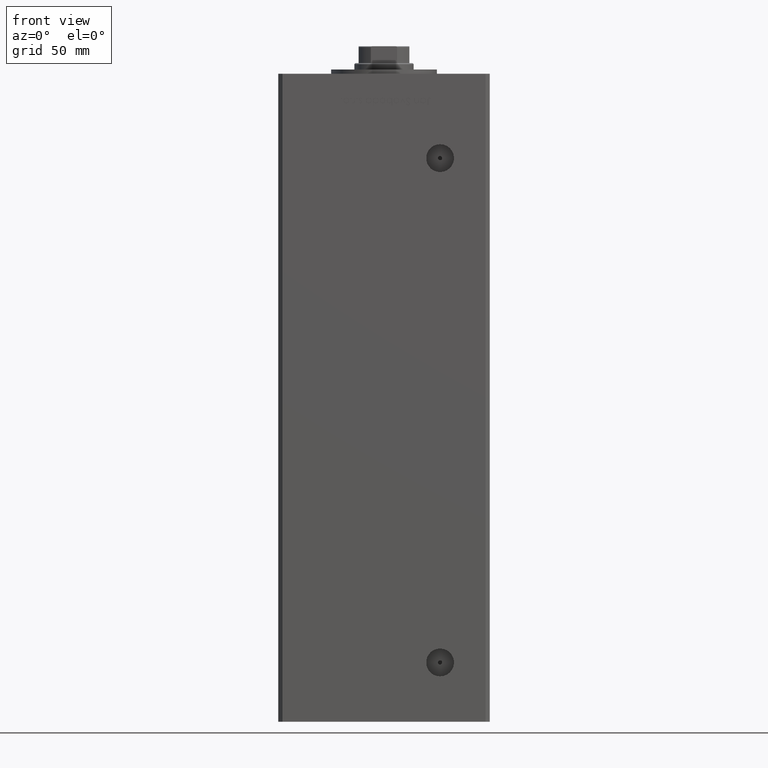
[diagram: clean part render]
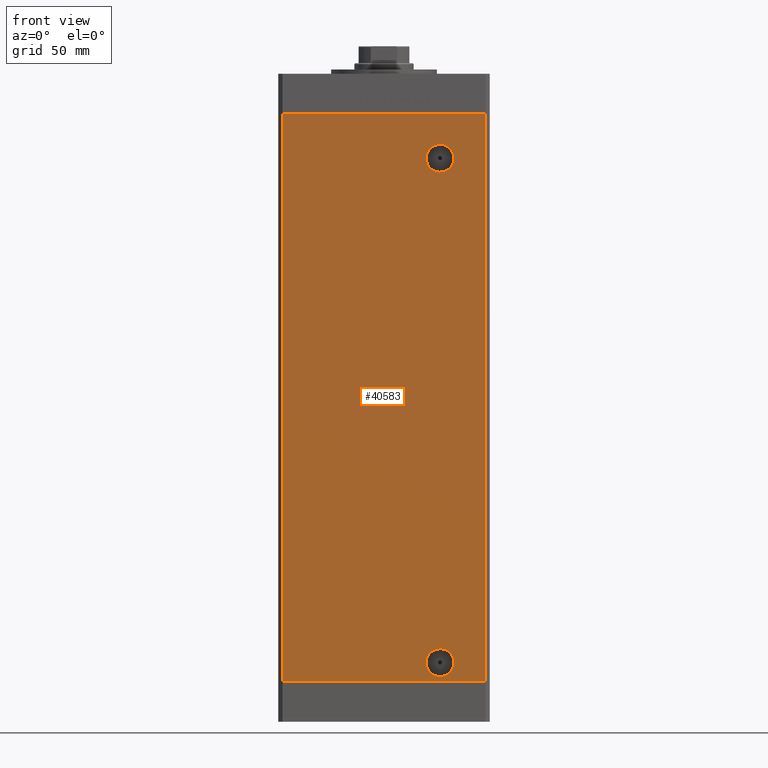
[diagram: same view with one face highlighted and labeled with its STEP entity id]
A machine part, front view. The second image highlights one B-rep face of the part: STEP entity #40583.
In plain terms, the highlighted planar face has unit normal (0, 1, 0).
Its self-contained STEP definition (entity closure, byte-faithful):
#291 = DIRECTION ( 'NONE',  ( 0.000000000000000000, -0.000000000000000000, 1.000000000000000000 ) ) ;
#1566 = EDGE_CURVE ( 'NONE', #24030, #47044, #41972, .T. ) ;
#3149 = DIRECTION ( 'NONE',  ( -0.000000000000000000, -0.000000000000000000, -1.000000000000000000 ) ) ;
#3734 = CARTESIAN_POINT ( 'NONE',  ( -47.99999999999998579, -43.50000000000000000, 268.5000000000000000 ) ) ;
#4540 = DIRECTION ( 'NONE',  ( 0.000000000000000000, 0.000000000000000000, -1.000000000000000000 ) ) ;
#4769 = FACE_BOUND ( 'NONE', #34855, .T. ) ;
#5316 = CARTESIAN_POINT ( 'NONE',  ( 47.99999999999998579, -43.50000000000000000, 0.000000000000000000 ) ) ;
#5410 = CARTESIAN_POINT ( 'NONE',  ( 26.49999999999998934, -43.50000000000000000, 9.000000000000007105 ) ) ;
#5587 = ORIENTED_EDGE ( 'NONE', *, *, #46482, .T. ) ;
#6543 = CARTESIAN_POINT ( 'NONE',  ( 47.99999999999998579, -43.50000000000000000, 268.5000000000000000 ) ) ;
#8670 = AXIS2_PLACEMENT_3D ( 'NONE', #5410, #37602, #49974 ) ;
#9146 = CARTESIAN_POINT ( 'NONE',  ( 26.49999999999998934, -43.50000000000000000, 9.000000000000007105 ) ) ;
#9281 = LINE ( 'NONE', #17449, #21624 ) ;
#9954 = AXIS2_PLACEMENT_3D ( 'NONE', #23300, #35950, #40179 ) ;
#10145 = EDGE_CURVE ( 'NONE', #43486, #29342, #11854, .T. ) ;
#11018 = CIRCLE ( 'NONE', #40503, 6.580000000000002736 ) ;
#11854 = LINE ( 'NONE', #27944, #50925 ) ;
#11898 = VECTOR ( 'NONE', #3149, 1000.000000000000000 ) ;
#12377 = CARTESIAN_POINT ( 'NONE',  ( 26.49999999999998934, -43.50000000000000000, 2.420000000000013252 ) ) ;
#12472 = DIRECTION ( 'NONE',  ( -0.000000000000000000, 1.000000000000000000, -0.000000000000000000 ) ) ;
#12693 = EDGE_LOOP ( 'NONE', ( #15281, #17854 ) ) ;
#13104 = CARTESIAN_POINT ( 'NONE',  ( 26.49999999999996092, -43.50000000000000000, 254.0799999999999841 ) ) ;
#13506 = DIRECTION ( 'NONE',  ( -0.000000000000000000, -0.000000000000000000, -1.000000000000000000 ) ) ;
#14253 = VERTEX_POINT ( 'NONE', #12377 ) ;
#15281 = ORIENTED_EDGE ( 'NONE', *, *, #52131, .F. ) ;
#17424 = ORIENTED_EDGE ( 'NONE', *, *, #10145, .T. ) ;
#17449 = CARTESIAN_POINT ( 'NONE',  ( -47.99999999999998579, -43.50000000000000000, 268.5000000000000000 ) ) ;
#17694 = CARTESIAN_POINT ( 'NONE',  ( -47.99999999999998579, -43.50000000000000000, 268.5000000000000000 ) ) ;
#17854 = ORIENTED_EDGE ( 'NONE', *, *, #26474, .F. ) ;
#18951 = ORIENTED_EDGE ( 'NONE', *, *, #1566, .F. ) ;
#19213 = VERTEX_POINT ( 'NONE', #34875 ) ;
#20246 = ORIENTED_EDGE ( 'NONE', *, *, #26963, .T. ) ;
#21272 = DIRECTION ( 'NONE',  ( 0.000000000000000000, -1.000000000000000000, 0.000000000000000000 ) ) ;
#21624 = VECTOR ( 'NONE', #13506, 1000.000000000000000 ) ;
#22441 = DIRECTION ( 'NONE',  ( 1.000000000000000000, 0.000000000000000000, 0.000000000000000000 ) ) ;
#22538 = EDGE_CURVE ( 'NONE', #24030, #43486, #9281, .T. ) ;
#22877 = VECTOR ( 'NONE', #22441, 1000.000000000000000 ) ;
#23300 = CARTESIAN_POINT ( 'NONE',  ( 26.49999999999996092, -43.50000000000000000, 247.5000000000000000 ) ) ;
#23635 = AXIS2_PLACEMENT_3D ( 'NONE', #3734, #44094, #291 ) ;
#24030 = VERTEX_POINT ( 'NONE', #29950 ) ;
#24299 = CIRCLE ( 'NONE', #30187, 6.579999999999994742 ) ;
#24455 = ORIENTED_EDGE ( 'NONE', *, *, #22538, .T. ) ;
#26474 = EDGE_CURVE ( 'NONE', #19213, #14253, #24299, .T. ) ;
#26927 = EDGE_LOOP ( 'NONE', ( #17424, #38704, #18951, #24455 ) ) ;
#26963 = EDGE_CURVE ( 'NONE', #28281, #49441, #41964, .T. ) ;
#27446 = CARTESIAN_POINT ( 'NONE',  ( 47.99999999999998579, -43.50000000000000000, 268.5000000000000000 ) ) ;
#27944 = CARTESIAN_POINT ( 'NONE',  ( -47.99999999999998579, -43.50000000000000000, 0.000000000000000000 ) ) ;
#28020 = FACE_OUTER_BOUND ( 'NONE', #26927, .T. ) ;
#28281 = VERTEX_POINT ( 'NONE', #49166 ) ;
#28798 = FACE_BOUND ( 'NONE', #12693, .T. ) ;
#29342 = VERTEX_POINT ( 'NONE', #5316 ) ;
#29950 = CARTESIAN_POINT ( 'NONE',  ( -47.99999999999998579, -43.50000000000000000, 268.5000000000000000 ) ) ;
#30187 = AXIS2_PLACEMENT_3D ( 'NONE', #9146, #21272, #33674 ) ;
#30598 = CIRCLE ( 'NONE', #8670, 6.579999999999994742 ) ;
#30836 = CARTESIAN_POINT ( 'NONE',  ( -47.99999999999998579, -43.50000000000000000, 0.000000000000000000 ) ) ;
#32523 = CARTESIAN_POINT ( 'NONE',  ( 26.49999999999996092, -43.50000000000000000, 247.5000000000000000 ) ) ;
#32679 = DIRECTION ( 'NONE',  ( 1.000000000000000000, 0.000000000000000000, 0.000000000000000000 ) ) ;
#33674 = DIRECTION ( 'NONE',  ( 0.000000000000000000, 0.000000000000000000, -1.000000000000000000 ) ) ;
#34855 = EDGE_LOOP ( 'NONE', ( #20246, #5587 ) ) ;
#34875 = CARTESIAN_POINT ( 'NONE',  ( 26.49999999999998934, -43.50000000000000000, 15.58000000000000362 ) ) ;
#35920 = PLANE ( 'NONE',  #23635 ) ;
#35950 = DIRECTION ( 'NONE',  ( -0.000000000000000000, 1.000000000000000000, -0.000000000000000000 ) ) ;
#37602 = DIRECTION ( 'NONE',  ( 0.000000000000000000, -1.000000000000000000, 0.000000000000000000 ) ) ;
#38704 = ORIENTED_EDGE ( 'NONE', *, *, #41666, .F. ) ;
#40179 = DIRECTION ( 'NONE',  ( 0.000000000000000000, 0.000000000000000000, -1.000000000000000000 ) ) ;
#40503 = AXIS2_PLACEMENT_3D ( 'NONE', #32523, #12472, #4540 ) ;
#40583 = ADVANCED_FACE ( 'NONE', ( #28798, #28020, #4769 ), #35920, .F. ) ;
#41666 = EDGE_CURVE ( 'NONE', #47044, #29342, #47219, .T. ) ;
#41964 = CIRCLE ( 'NONE', #9954, 6.580000000000002736 ) ;
#41972 = LINE ( 'NONE', #17694, #22877 ) ;
#43486 = VERTEX_POINT ( 'NONE', #30836 ) ;
#44094 = DIRECTION ( 'NONE',  ( 0.000000000000000000, 1.000000000000000000, 0.000000000000000000 ) ) ;
#46482 = EDGE_CURVE ( 'NONE', #49441, #28281, #11018, .T. ) ;
#47044 = VERTEX_POINT ( 'NONE', #6543 ) ;
#47219 = LINE ( 'NONE', #27446, #11898 ) ;
#49166 = CARTESIAN_POINT ( 'NONE',  ( 26.49999999999996092, -43.50000000000000000, 240.9199999999999875 ) ) ;
#49441 = VERTEX_POINT ( 'NONE', #13104 ) ;
#49974 = DIRECTION ( 'NONE',  ( 0.000000000000000000, 0.000000000000000000, -1.000000000000000000 ) ) ;
#50925 = VECTOR ( 'NONE', #32679, 1000.000000000000000 ) ;
#52131 = EDGE_CURVE ( 'NONE', #14253, #19213, #30598, .T. ) ;